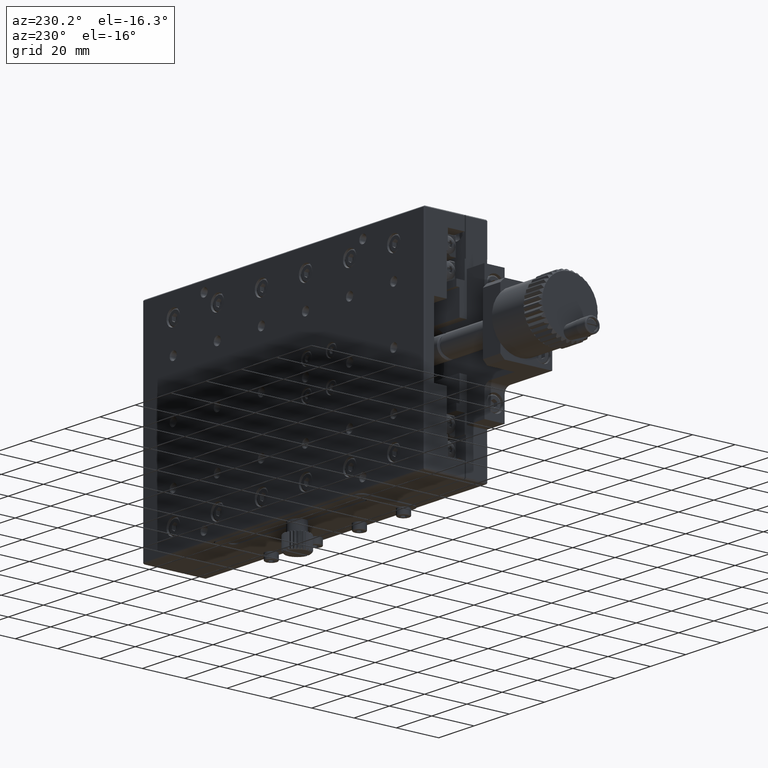
[diagram: clean part render]
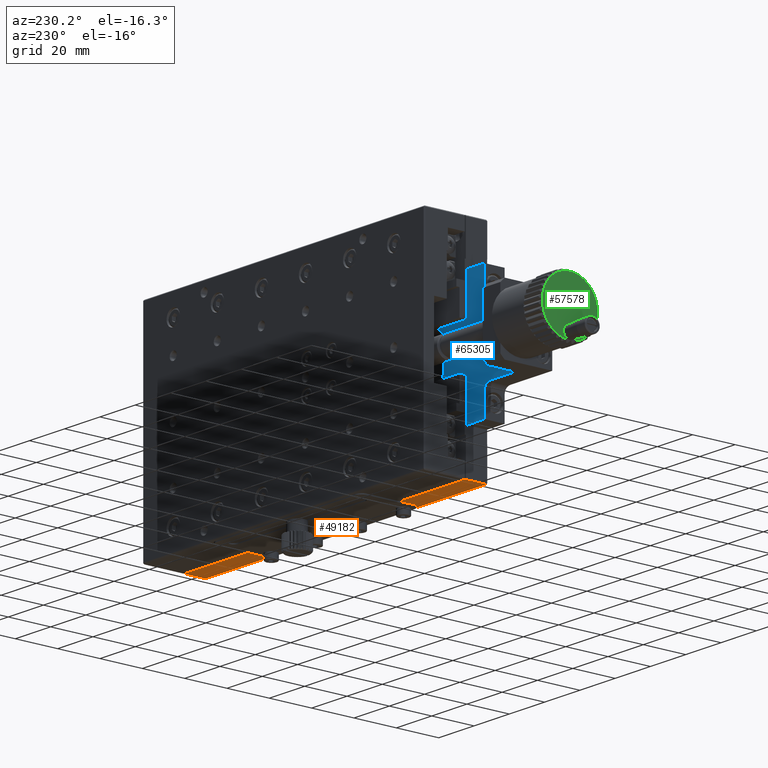
[diagram: same view with three faces highlighted in distinct colors, each labeled with its STEP entity id]
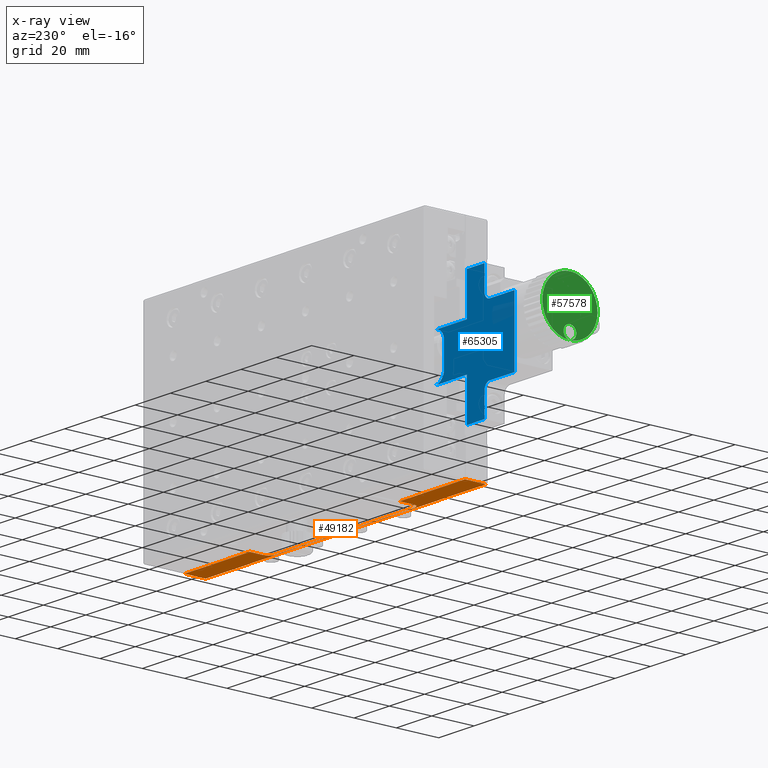
[diagram: x-ray of the same camera — body ghosted, the three highlighted faces saturated]
A machine part, auxiliary view with three faces highlighted in distinct colors.
The next image is the same camera in x-ray (body ghosted, the three faces saturated) — at least one of them is partly hidden behind the body in this view.
Their STEP definitions:

[orange] entity #49182 — the highlighted planar face has unit normal (0, 0, -1).
#2830 = EDGE_CURVE ( 'NONE', #29335, #52256, #29760, .T. ) ;
#3713 = EDGE_CURVE ( 'NONE', #43859, #10094, #29231, .T. ) ;
#3961 = CARTESIAN_POINT ( 'NONE',  ( -160.0000000000000000, 1.000000000000000000, -50.00000000000000000 ) ) ;
#9075 = AXIS2_PLACEMENT_3D ( 'NONE', #58511, #13027, #14111 ) ;
#10094 = VERTEX_POINT ( 'NONE', #46586 ) ;
#10455 = DIRECTION ( 'NONE',  ( -1.000000000000000000, -0.000000000000000000, 0.000000000000000000 ) ) ;
#12953 = CARTESIAN_POINT ( 'NONE',  ( -40.50000000000000711, 1.000000000000000000, -50.00000000000000000 ) ) ;
#13027 = DIRECTION ( 'NONE',  ( 0.000000000000000000, 0.000000000000000000, 1.000000000000000000 ) ) ;
#13238 = DIRECTION ( 'NONE',  ( -0.000000000000000000, -1.000000000000000000, 0.000000000000000000 ) ) ;
#13339 = LINE ( 'NONE', #70224, #66311 ) ;
#14111 = DIRECTION ( 'NONE',  ( 1.000000000000000000, 0.000000000000000000, 0.000000000000000000 ) ) ;
#14486 = CARTESIAN_POINT ( 'NONE',  ( -119.5000000000000142, 3.999999999999989786, -50.00000000000000000 ) ) ;
#14594 = VERTEX_POINT ( 'NONE', #40571 ) ;
#16097 = DIRECTION ( 'NONE',  ( 0.000000000000000000, 0.000000000000000000, -1.000000000000000000 ) ) ;
#16907 = CARTESIAN_POINT ( 'NONE',  ( -159.5000000000000000, 10.50000000000000178, -50.00000000000000000 ) ) ;
#17984 = CARTESIAN_POINT ( 'NONE',  ( -37.50000000000000711, 3.999999999999994671, -50.00000000000000000 ) ) ;
#19765 = EDGE_CURVE ( 'NONE', #57013, #14594, #56715, .T. ) ;
#20363 = DIRECTION ( 'NONE',  ( 0.000000000000000000, 0.000000000000000000, 1.000000000000000000 ) ) ;
#21026 = ORIENTED_EDGE ( 'NONE', *, *, #28365, .F. ) ;
#21817 = ORIENTED_EDGE ( 'NONE', *, *, #19765, .T. ) ;
#22149 = DIRECTION ( 'NONE',  ( -1.000000000000000000, -0.000000000000000000, 0.000000000000000000 ) ) ;
#22353 = AXIS2_PLACEMENT_3D ( 'NONE', #66001, #16097, #32640 ) ;
#22389 = CARTESIAN_POINT ( 'NONE',  ( -122.5000000000000000, 10.50000000000000000, -50.00000000000000000 ) ) ;
#23714 = CARTESIAN_POINT ( 'NONE',  ( -37.50000000000000711, 0.000000000000000000, -50.00000000000000000 ) ) ;
#24225 = VECTOR ( 'NONE', #50480, 1000.000000000000000 ) ;
#25075 = EDGE_CURVE ( 'NONE', #14594, #67556, #54207, .T. ) ;
#26237 = DIRECTION ( 'NONE',  ( 1.000000000000000000, 0.000000000000000000, 0.000000000000000000 ) ) ;
#27058 = EDGE_CURVE ( 'NONE', #45104, #35525, #13339, .T. ) ;
#27130 = PLANE ( 'NONE',  #22353 ) ;
#27473 = FACE_OUTER_BOUND ( 'NONE', #50292, .T. ) ;
#28365 = EDGE_CURVE ( 'NONE', #29335, #10094, #31403, .T. ) ;
#29231 = LINE ( 'NONE', #23714, #66577 ) ;
#29335 = VERTEX_POINT ( 'NONE', #52433 ) ;
#29760 = LINE ( 'NONE', #51041, #38395 ) ;
#31403 = LINE ( 'NONE', #49005, #72120 ) ;
#32370 = ORIENTED_EDGE ( 'NONE', *, *, #60025, .T. ) ;
#32459 = CARTESIAN_POINT ( 'NONE',  ( -160.0000000000000000, 10.50000000000000000, -50.00000000000000000 ) ) ;
#32500 = CIRCLE ( 'NONE', #9075, 2.999999999999988898 ) ;
#32640 = DIRECTION ( 'NONE',  ( -1.000000000000000000, 0.000000000000000000, -0.000000000000000000 ) ) ;
#35525 = VERTEX_POINT ( 'NONE', #50827 ) ;
#35828 = EDGE_CURVE ( 'NONE', #69251, #45104, #54824, .T. ) ;
#37176 = ORIENTED_EDGE ( 'NONE', *, *, #25075, .T. ) ;
#38395 = VECTOR ( 'NONE', #13238, 1000.000000000000000 ) ;
#38668 = CARTESIAN_POINT ( 'NONE',  ( -0.5000000000000004441, 0.5000000000000001110, -50.00000000000000000 ) ) ;
#40550 = VECTOR ( 'NONE', #22149, 1000.000000000000000 ) ;
#40571 = CARTESIAN_POINT ( 'NONE',  ( -119.5000000000000142, 1.000000000000000000, -50.00000000000000000 ) ) ;
#41832 = ORIENTED_EDGE ( 'NONE', *, *, #35828, .F. ) ;
#43796 = ORIENTED_EDGE ( 'NONE', *, *, #2830, .T. ) ;
#43859 = VERTEX_POINT ( 'NONE', #17984 ) ;
#44619 = VECTOR ( 'NONE', #65368, 1000.000000000000000 ) ;
#45104 = VERTEX_POINT ( 'NONE', #16907 ) ;
#46586 = CARTESIAN_POINT ( 'NONE',  ( -37.50000000000000711, 10.50000000000000000, -50.00000000000000000 ) ) ;
#48494 = CARTESIAN_POINT ( 'NONE',  ( -122.5000000000000000, 0.000000000000000000, -50.00000000000000000 ) ) ;
#48730 = DIRECTION ( 'NONE',  ( 1.000000000000000000, -0.000000000000000000, 0.000000000000000000 ) ) ;
#49005 = CARTESIAN_POINT ( 'NONE',  ( -160.0000000000000000, 10.50000000000000000, -50.00000000000000000 ) ) ;
#49182 = ADVANCED_FACE ( 'NONE', ( #27473 ), #27130, .T. ) ;
#50114 = CARTESIAN_POINT ( 'NONE',  ( -160.0000000000000000, 0.4999999999999997780, -50.00000000000000000 ) ) ;
#50292 = EDGE_LOOP ( 'NONE', ( #32370, #68024, #41832, #66868, #21817, #37176, #70186, #63128, #21026, #43796 ) ) ;
#50368 = CARTESIAN_POINT ( 'NONE',  ( -122.5000000000000000, 3.999999999999994671, -50.00000000000000000 ) ) ;
#50480 = DIRECTION ( 'NONE',  ( -1.000000000000000000, -0.000000000000000000, -0.000000000000000000 ) ) ;
#50827 = CARTESIAN_POINT ( 'NONE',  ( -159.5000000000000000, 0.5000000000000002220, -50.00000000000000000 ) ) ;
#51041 = CARTESIAN_POINT ( 'NONE',  ( -0.5000000000000004441, 0.000000000000000000, -50.00000000000000000 ) ) ;
#51245 = EDGE_CURVE ( 'NONE', #69251, #57013, #59855, .T. ) ;
#52256 = VERTEX_POINT ( 'NONE', #38668 ) ;
#52433 = CARTESIAN_POINT ( 'NONE',  ( -0.5000000000000002220, 10.50000000000000178, -50.00000000000000000 ) ) ;
#53261 = VECTOR ( 'NONE', #48730, 1000.000000000000000 ) ;
#54207 = LINE ( 'NONE', #3961, #53261 ) ;
#54824 = LINE ( 'NONE', #32459, #40550 ) ;
#56715 = CIRCLE ( 'NONE', #71979, 2.999999999999988898 ) ;
#57013 = VERTEX_POINT ( 'NONE', #50368 ) ;
#58116 = DIRECTION ( 'NONE',  ( -0.000000000000000000, -1.000000000000000000, 0.000000000000000000 ) ) ;
#58511 = CARTESIAN_POINT ( 'NONE',  ( -40.50000000000000000, 3.999999999999989786, -50.00000000000000000 ) ) ;
#59855 = LINE ( 'NONE', #48494, #44619 ) ;
#60025 = EDGE_CURVE ( 'NONE', #52256, #35525, #62938, .T. ) ;
#62938 = LINE ( 'NONE', #50114, #24225 ) ;
#63128 = ORIENTED_EDGE ( 'NONE', *, *, #3713, .T. ) ;
#65368 = DIRECTION ( 'NONE',  ( -0.000000000000000000, -1.000000000000000000, -0.000000000000000000 ) ) ;
#66001 = CARTESIAN_POINT ( 'NONE',  ( -160.0000000000000000, 0.000000000000000000, -50.00000000000000000 ) ) ;
#66311 = VECTOR ( 'NONE', #58116, 1000.000000000000000 ) ;
#66577 = VECTOR ( 'NONE', #68460, 1000.000000000000000 ) ;
#66623 = EDGE_CURVE ( 'NONE', #67556, #43859, #32500, .T. ) ;
#66868 = ORIENTED_EDGE ( 'NONE', *, *, #51245, .T. ) ;
#67556 = VERTEX_POINT ( 'NONE', #12953 ) ;
#68024 = ORIENTED_EDGE ( 'NONE', *, *, #27058, .F. ) ;
#68460 = DIRECTION ( 'NONE',  ( 0.000000000000000000, 1.000000000000000000, 0.000000000000000000 ) ) ;
#69251 = VERTEX_POINT ( 'NONE', #22389 ) ;
#70186 = ORIENTED_EDGE ( 'NONE', *, *, #66623, .T. ) ;
#70224 = CARTESIAN_POINT ( 'NONE',  ( -159.5000000000000000, 0.000000000000000000, -50.00000000000000000 ) ) ;
#71979 = AXIS2_PLACEMENT_3D ( 'NONE', #14486, #20363, #26237 ) ;
#72120 = VECTOR ( 'NONE', #10455, 1000.000000000000000 ) ;

[blue] entity #65305 — the highlighted planar face has unit normal (0, 1, 0).
#1365 = ORIENTED_EDGE ( 'NONE', *, *, #66980, .T. ) ;
#1619 = LINE ( 'NONE', #69479, #20798 ) ;
#2811 = LINE ( 'NONE', #58217, #23264 ) ;
#3051 = LINE ( 'NONE', #52207, #65022 ) ;
#3207 = VECTOR ( 'NONE', #7865, 1000.000000000000000 ) ;
#3674 = DIRECTION ( 'NONE',  ( 0.000000000000000000, 0.000000000000000000, -1.000000000000000000 ) ) ;
#3964 = VECTOR ( 'NONE', #42468, 1000.000000000000000 ) ;
#4946 = EDGE_CURVE ( 'NONE', #49301, #50276, #35728, .T. ) ;
#4996 = EDGE_CURVE ( 'NONE', #47034, #60810, #1619, .T. ) ;
#5343 = CIRCLE ( 'NONE', #55710, 3.000000000000030198 ) ;
#5764 = CIRCLE ( 'NONE', #66712, 4.999999999999950262 ) ;
#5979 = ORIENTED_EDGE ( 'NONE', *, *, #56603, .T. ) ;
#6082 = EDGE_CURVE ( 'NONE', #48998, #62325, #41250, .T. ) ;
#7160 = CARTESIAN_POINT ( 'NONE',  ( -170.0000000000000000, 10.00000000000000000, -10.50000000000000000 ) ) ;
#7622 = CARTESIAN_POINT ( 'NONE',  ( -142.0000000000000284, 10.00000000000000000, -10.50000000000000000 ) ) ;
#7724 = VECTOR ( 'NONE', #50164, 1000.000000000000000 ) ;
#7865 = DIRECTION ( 'NONE',  ( 0.000000000000000000, 0.000000000000000000, -1.000000000000000000 ) ) ;
#8262 = CARTESIAN_POINT ( 'NONE',  ( -160.0000000000000000, 10.00000000000000000, -10.50000000000000000 ) ) ;
#8503 = DIRECTION ( 'NONE',  ( 0.000000000000000000, -0.000000000000000000, 1.000000000000000000 ) ) ;
#10566 = CARTESIAN_POINT ( 'NONE',  ( -173.0000000000000284, 10.00000000000000000, 15.49999999999998579 ) ) ;
#11218 = VERTEX_POINT ( 'NONE', #48626 ) ;
#11742 = LINE ( 'NONE', #28993, #25379 ) ;
#13283 = LINE ( 'NONE', #13663, #43972 ) ;
#13663 = CARTESIAN_POINT ( 'NONE',  ( -170.0000000000000000, 10.00000000000000000, -10.50000000000000000 ) ) ;
#14444 = DIRECTION ( 'NONE',  ( -0.000000000000000000, -1.000000000000000000, -0.000000000000000000 ) ) ;
#14779 = CIRCLE ( 'NONE', #41696, 3.000000000000030198 ) ;
#15467 = CARTESIAN_POINT ( 'NONE',  ( -142.0000000000000284, 10.00000000000000000, 10.50000000000000000 ) ) ;
#15576 = CARTESIAN_POINT ( 'NONE',  ( -173.0000000000000284, 10.00000000000000000, -18.50000000000000000 ) ) ;
#16049 = VERTEX_POINT ( 'NONE', #10566 ) ;
#16413 = CARTESIAN_POINT ( 'NONE',  ( -160.0000000000000000, 10.00000000000000000, 29.50000000000000000 ) ) ;
#16532 = CARTESIAN_POINT ( 'NONE',  ( -160.0000000000000000, 10.00000000000000000, 29.50000000000000000 ) ) ;
#17709 = DIRECTION ( 'NONE',  ( 0.000000000000000000, -0.000000000000000000, 1.000000000000000000 ) ) ;
#17960 = DIRECTION ( 'NONE',  ( 1.000000000000000000, 0.000000000000000000, -0.000000000000000000 ) ) ;
#18501 = VERTEX_POINT ( 'NONE', #7622 ) ;
#18951 = EDGE_CURVE ( 'NONE', #30149, #18501, #68393, .T. ) ;
#19209 = DIRECTION ( 'NONE',  ( 1.000000000000000000, 0.000000000000000000, -0.000000000000000000 ) ) ;
#19281 = CARTESIAN_POINT ( 'NONE',  ( -186.9999999999999716, 10.00000000000000000, 15.50000000000000000 ) ) ;
#20320 = CARTESIAN_POINT ( 'NONE',  ( -160.0000000000000000, 10.00000000000000000, 10.50000000000000000 ) ) ;
#20326 = CARTESIAN_POINT ( 'NONE',  ( -142.0000000000000284, 10.00000000000000000, -5.500000000000020428 ) ) ;
#20601 = CARTESIAN_POINT ( 'NONE',  ( -160.0000000000000000, 10.00000000000000000, -10.50000000000000000 ) ) ;
#20798 = VECTOR ( 'NONE', #19209, 1000.000000000000000 ) ;
#20822 = ORIENTED_EDGE ( 'NONE', *, *, #65595, .T. ) ;
#23264 = VECTOR ( 'NONE', #24843, 1000.000000000000000 ) ;
#24325 = VECTOR ( 'NONE', #3674, 1000.000000000000000 ) ;
#24347 = DIRECTION ( 'NONE',  ( -1.000000000000000000, -0.000000000000000000, 0.000000000000000000 ) ) ;
#24381 = CARTESIAN_POINT ( 'NONE',  ( -160.0000000000000000, 10.00000000000000000, 0.000000000000000000 ) ) ;
#24843 = DIRECTION ( 'NONE',  ( -1.000000000000000000, -0.000000000000000000, 0.000000000000000000 ) ) ;
#24844 = ORIENTED_EDGE ( 'NONE', *, *, #61307, .T. ) ;
#25379 = VECTOR ( 'NONE', #17960, 1000.000000000000000 ) ;
#25617 = CARTESIAN_POINT ( 'NONE',  ( -187.0000000000000000, 10.00000000000000000, -10.50000000000000000 ) ) ;
#25883 = LINE ( 'NONE', #42380, #34463 ) ;
#26398 = EDGE_CURVE ( 'NONE', #50643, #51345, #66686, .T. ) ;
#26643 = ORIENTED_EDGE ( 'NONE', *, *, #26931, .T. ) ;
#26646 = ORIENTED_EDGE ( 'NONE', *, *, #58240, .T. ) ;
#26931 = EDGE_CURVE ( 'NONE', #16049, #11218, #14779, .T. ) ;
#27526 = VECTOR ( 'NONE', #63632, 1000.000000000000000 ) ;
#27548 = CARTESIAN_POINT ( 'NONE',  ( -142.0000000000000284, 10.00000000000000000, 5.500000000000020428 ) ) ;
#28374 = EDGE_CURVE ( 'NONE', #62325, #42587, #5343, .T. ) ;
#28993 = CARTESIAN_POINT ( 'NONE',  ( -160.0000000000000000, 10.00000000000000000, 15.50000000000000178 ) ) ;
#30149 = VERTEX_POINT ( 'NONE', #47385 ) ;
#30255 = CARTESIAN_POINT ( 'NONE',  ( -173.0000000000000284, 10.00000000000000000, 18.50000000000000000 ) ) ;
#31257 = DIRECTION ( 'NONE',  ( 0.000000000000000000, 1.000000000000000000, 0.000000000000000000 ) ) ;
#33704 = ORIENTED_EDGE ( 'NONE', *, *, #6082, .T. ) ;
#33979 = CARTESIAN_POINT ( 'NONE',  ( -147.0000000000000000, 10.00000000000000000, 5.500000000000009770 ) ) ;
#34463 = VECTOR ( 'NONE', #53377, 1000.000000000000000 ) ;
#34480 = DIRECTION ( 'NONE',  ( -0.000000000000000000, -1.000000000000000000, -0.000000000000000000 ) ) ;
#35728 = LINE ( 'NONE', #24381, #3207 ) ;
#36768 = ORIENTED_EDGE ( 'NONE', *, *, #61773, .T. ) ;
#36776 = AXIS2_PLACEMENT_3D ( 'NONE', #20326, #14444, #65460 ) ;
#36844 = DIRECTION ( 'NONE',  ( -1.000000000000000000, -0.000000000000000000, 0.000000000000000000 ) ) ;
#37691 = ORIENTED_EDGE ( 'NONE', *, *, #4996, .T. ) ;
#38189 = AXIS2_PLACEMENT_3D ( 'NONE', #20601, #31257, #8503 ) ;
#40622 = CARTESIAN_POINT ( 'NONE',  ( -170.0000000000000000, 10.00000000000000000, -18.50000000000000000 ) ) ;
#41250 = LINE ( 'NONE', #7160, #27526 ) ;
#41263 = CARTESIAN_POINT ( 'NONE',  ( -170.0000000000000000, 10.00000000000000000, 29.50000000000000000 ) ) ;
#41696 = AXIS2_PLACEMENT_3D ( 'NONE', #30255, #64354, #59186 ) ;
#42007 = LINE ( 'NONE', #8262, #67978 ) ;
#42257 = VERTEX_POINT ( 'NONE', #19281 ) ;
#42380 = CARTESIAN_POINT ( 'NONE',  ( -147.0000000000000000, 10.00000000000000000, -10.50000000000000000 ) ) ;
#42468 = DIRECTION ( 'NONE',  ( 0.000000000000000000, -0.000000000000000000, 1.000000000000000000 ) ) ;
#42587 = VERTEX_POINT ( 'NONE', #59858 ) ;
#43135 = DIRECTION ( 'NONE',  ( 0.000000000000000000, -1.000000000000000000, 0.000000000000000000 ) ) ;
#43245 = EDGE_CURVE ( 'NONE', #18501, #49301, #42007, .T. ) ;
#43972 = VECTOR ( 'NONE', #17709, 1000.000000000000000 ) ;
#45449 = CARTESIAN_POINT ( 'NONE',  ( -160.0000000000000000, 10.00000000000000000, -10.50000000000000000 ) ) ;
#46159 = ORIENTED_EDGE ( 'NONE', *, *, #68069, .T. ) ;
#47034 = VERTEX_POINT ( 'NONE', #20320 ) ;
#47385 = CARTESIAN_POINT ( 'NONE',  ( -147.0000000000000000, 10.00000000000000000, -5.500000000000009770 ) ) ;
#47549 = EDGE_CURVE ( 'NONE', #60810, #63984, #5764, .T. ) ;
#48425 = CARTESIAN_POINT ( 'NONE',  ( -170.0000000000000000, 10.00000000000000000, -29.50000000000000711 ) ) ;
#48626 = CARTESIAN_POINT ( 'NONE',  ( -169.9999999999999716, 10.00000000000000000, 18.49999999999999645 ) ) ;
#48998 = VERTEX_POINT ( 'NONE', #48425 ) ;
#49301 = VERTEX_POINT ( 'NONE', #45449 ) ;
#50164 = DIRECTION ( 'NONE',  ( 1.000000000000000000, 0.000000000000000000, -0.000000000000000000 ) ) ;
#50276 = VERTEX_POINT ( 'NONE', #64099 ) ;
#50643 = VERTEX_POINT ( 'NONE', #41263 ) ;
#51345 = VERTEX_POINT ( 'NONE', #16532 ) ;
#52207 = CARTESIAN_POINT ( 'NONE',  ( -160.0000000000000000, 10.00000000000000000, -15.50000000000000000 ) ) ;
#53377 = DIRECTION ( 'NONE',  ( -0.000000000000000000, 0.000000000000000000, -1.000000000000000000 ) ) ;
#53922 = CARTESIAN_POINT ( 'NONE',  ( -160.0000000000000000, 10.00000000000000000, 0.000000000000000000 ) ) ;
#54386 = ORIENTED_EDGE ( 'NONE', *, *, #26398, .T. ) ;
#55710 = AXIS2_PLACEMENT_3D ( 'NONE', #15576, #43135, #66215 ) ;
#55783 = DIRECTION ( 'NONE',  ( 0.000000000000000000, 0.000000000000000000, 1.000000000000000000 ) ) ;
#56179 = EDGE_LOOP ( 'NONE', ( #68260, #24844, #60387, #61751, #57800, #46159, #33704, #66857, #36768, #5979, #20822, #26643, #26646, #54386, #1365, #37691 ) ) ;
#56583 = CARTESIAN_POINT ( 'NONE',  ( -186.9999999999999716, 10.00000000000000000, -15.50000000000000000 ) ) ;
#56603 = EDGE_CURVE ( 'NONE', #60437, #42257, #58271, .T. ) ;
#57800 = ORIENTED_EDGE ( 'NONE', *, *, #4946, .T. ) ;
#58217 = CARTESIAN_POINT ( 'NONE',  ( -160.0000000000000000, 10.00000000000000000, -29.50000000000000355 ) ) ;
#58240 = EDGE_CURVE ( 'NONE', #11218, #50643, #13283, .T. ) ;
#58271 = LINE ( 'NONE', #25617, #3964 ) ;
#59115 = PLANE ( 'NONE',  #38189 ) ;
#59186 = DIRECTION ( 'NONE',  ( 0.000000000000000000, 0.000000000000000000, -1.000000000000000000 ) ) ;
#59858 = CARTESIAN_POINT ( 'NONE',  ( -173.0000000000000284, 10.00000000000000000, -15.50000000000000000 ) ) ;
#60387 = ORIENTED_EDGE ( 'NONE', *, *, #18951, .T. ) ;
#60437 = VERTEX_POINT ( 'NONE', #56583 ) ;
#60810 = VERTEX_POINT ( 'NONE', #15467 ) ;
#61307 = EDGE_CURVE ( 'NONE', #63984, #30149, #25883, .T. ) ;
#61751 = ORIENTED_EDGE ( 'NONE', *, *, #43245, .T. ) ;
#61773 = EDGE_CURVE ( 'NONE', #42587, #60437, #3051, .T. ) ;
#62325 = VERTEX_POINT ( 'NONE', #40622 ) ;
#63632 = DIRECTION ( 'NONE',  ( 0.000000000000000000, -0.000000000000000000, 1.000000000000000000 ) ) ;
#63921 = FACE_OUTER_BOUND ( 'NONE', #56179, .T. ) ;
#63984 = VERTEX_POINT ( 'NONE', #33979 ) ;
#64099 = CARTESIAN_POINT ( 'NONE',  ( -160.0000000000000000, 10.00000000000000000, -29.50000000000000711 ) ) ;
#64354 = DIRECTION ( 'NONE',  ( 0.000000000000000000, -1.000000000000000000, 0.000000000000000000 ) ) ;
#65022 = VECTOR ( 'NONE', #24347, 1000.000000000000000 ) ;
#65305 = ADVANCED_FACE ( 'NONE', ( #63921 ), #59115, .T. ) ;
#65460 = DIRECTION ( 'NONE',  ( 0.000000000000000000, 0.000000000000000000, 1.000000000000000000 ) ) ;
#65595 = EDGE_CURVE ( 'NONE', #42257, #16049, #11742, .T. ) ;
#66215 = DIRECTION ( 'NONE',  ( 0.000000000000000000, 0.000000000000000000, -1.000000000000000000 ) ) ;
#66686 = LINE ( 'NONE', #16413, #7724 ) ;
#66712 = AXIS2_PLACEMENT_3D ( 'NONE', #27548, #34480, #55783 ) ;
#66857 = ORIENTED_EDGE ( 'NONE', *, *, #28374, .T. ) ;
#66980 = EDGE_CURVE ( 'NONE', #51345, #47034, #70083, .T. ) ;
#67978 = VECTOR ( 'NONE', #36844, 1000.000000000000000 ) ;
#68069 = EDGE_CURVE ( 'NONE', #50276, #48998, #2811, .T. ) ;
#68260 = ORIENTED_EDGE ( 'NONE', *, *, #47549, .T. ) ;
#68393 = CIRCLE ( 'NONE', #36776, 4.999999999999979572 ) ;
#69479 = CARTESIAN_POINT ( 'NONE',  ( -160.0000000000000000, 10.00000000000000000, 10.50000000000000000 ) ) ;
#70083 = LINE ( 'NONE', #53922, #24325 ) ;

[green] entity #57578 — the highlighted planar face has unit normal (1, 0, 0).
#23 = DIRECTION ( 'NONE',  ( 0.000000000000000000, 0.000000000000000000, 1.000000000000000000 ) ) ;
#58 = CIRCLE ( 'NONE', #28178, 12.99999999999999645 ) ;
#75 = CARTESIAN_POINT ( 'NONE',  ( -225.0000000000000284, 4.982779073122910241, 7.641208279804134307 ) ) ;
#109 = CARTESIAN_POINT ( 'NONE',  ( -225.0000000000000000, 27.67105331831978887, 4.567872713058622303 ) ) ;
#372 = ORIENTED_EDGE ( 'NONE', *, *, #72158, .F. ) ;
#373 = CARTESIAN_POINT ( 'NONE',  ( -225.0000000000000000, 27.67105331831982440, -4.567872713058536149 ) ) ;
#576 = CARTESIAN_POINT ( 'NONE',  ( -225.0000000000000000, 10.39067458849772763, -11.95386104317202580 ) ) ;
#2071 = DIRECTION ( 'NONE',  ( 0.000000000000000000, 1.000000000000000000, 0.000000000000000000 ) ) ;
#2103 = DIRECTION ( 'NONE',  ( 0.000000000000000000, 1.000000000000000000, 0.000000000000000000 ) ) ;
#2107 = CARTESIAN_POINT ( 'NONE',  ( -225.0000000000000000, 15.50000000000000178, 0.000000000000000000 ) ) ;
#2197 = CIRCLE ( 'NONE', #20939, 12.99999999999999645 ) ;
#2696 = DIRECTION ( 'NONE',  ( 1.000000000000000000, -9.912705577010328508E-16, 0.000000000000000000 ) ) ;
#3145 = CARTESIAN_POINT ( 'NONE',  ( -225.0000000000000000, 15.50000000000000178, 0.000000000000000000 ) ) ;
#3184 = DIRECTION ( 'NONE',  ( 1.000000000000000000, -9.912705577010328508E-16, 0.000000000000000000 ) ) ;
#3226 = AXIS2_PLACEMENT_3D ( 'NONE', #37512, #59517, #15833 ) ;
#3230 = DIRECTION ( 'NONE',  ( 1.000000000000000000, -9.912705577010328508E-16, 0.000000000000000000 ) ) ;
#3304 = DIRECTION ( 'NONE',  ( 0.000000000000000000, 1.000000000000000000, 0.000000000000000000 ) ) ;
#3849 = CARTESIAN_POINT ( 'NONE',  ( -225.0000000000000284, 6.516185563168463979, -9.396333229758605299 ) ) ;
#4170 = AXIS2_PLACEMENT_3D ( 'NONE', #62042, #22773, #11778 ) ;
#4228 = AXIS2_PLACEMENT_3D ( 'NONE', #38573, #32718, #60949 ) ;
#4276 = CIRCLE ( 'NONE', #51064, 12.99999999999999645 ) ;
#4290 = CARTESIAN_POINT ( 'NONE',  ( -225.0000000000000000, 25.28992905804953395, 8.553203437218490635 ) ) ;
#4950 = VERTEX_POINT ( 'NONE', #52962 ) ;
#5208 = EDGE_CURVE ( 'NONE', #61246, #49779, #43119, .T. ) ;
#5606 = AXIS2_PLACEMENT_3D ( 'NONE', #34189, #10376, #66137 ) ;
#5720 = DIRECTION ( 'NONE',  ( 0.000000000000000000, 1.000000000000000000, 0.000000000000000000 ) ) ;
#5768 = DIRECTION ( 'NONE',  ( 0.000000000000000000, 1.000000000000000000, 0.000000000000000000 ) ) ;
#5785 = ORIENTED_EDGE ( 'NONE', *, *, #66954, .F. ) ;
#6228 = CARTESIAN_POINT ( 'NONE',  ( -225.0000000000227374, 15.50000000000000000, -10.00000000000000000 ) ) ;
#6232 = EDGE_CURVE ( 'NONE', #11785, #4950, #20512, .T. ) ;
#6383 = VERTEX_POINT ( 'NONE', #41147 ) ;
#6494 = EDGE_CURVE ( 'NONE', #14407, #41399, #46299, .T. ) ;
#6658 = CARTESIAN_POINT ( 'NONE',  ( -225.0000000000000000, 15.50000000000000178, 0.000000000000000000 ) ) ;
#7048 = AXIS2_PLACEMENT_3D ( 'NONE', #54007, #60578, #21674 ) ;
#7571 = CARTESIAN_POINT ( 'NONE',  ( -225.0000000000000284, 4.982779073122965308, -7.641208279804208026 ) ) ;
#7685 = DIRECTION ( 'NONE',  ( 1.000000000000000000, -9.912705577010328508E-16, 0.000000000000000000 ) ) ;
#7737 = DIRECTION ( 'NONE',  ( 0.000000000000000000, 1.000000000000000000, 0.000000000000000000 ) ) ;
#8042 = ORIENTED_EDGE ( 'NONE', *, *, #25257, .F. ) ;
#8291 = CIRCLE ( 'NONE', #37618, 12.99999999999999645 ) ;
#8649 = VERTEX_POINT ( 'NONE', #60947 ) ;
#8822 = AXIS2_PLACEMENT_3D ( 'NONE', #2107, #19700, #53437 ) ;
#8875 = CIRCLE ( 'NONE', #4228, 12.99999999999999645 ) ;
#9020 = AXIS2_PLACEMENT_3D ( 'NONE', #3145, #46833, #24806 ) ;
#9167 = CARTESIAN_POINT ( 'NONE',  ( -225.0000000000000000, 15.50000000000000178, 0.000000000000000000 ) ) ;
#9392 = VERTEX_POINT ( 'NONE', #48852 ) ;
#9514 = DIRECTION ( 'NONE',  ( 1.000000000000000000, -9.912705577010328508E-16, 0.000000000000000000 ) ) ;
#9588 = EDGE_CURVE ( 'NONE', #29482, #60731, #50744, .T. ) ;
#9706 = AXIS2_PLACEMENT_3D ( 'NONE', #43985, #20884, #27112 ) ;
#9757 = CARTESIAN_POINT ( 'NONE',  ( -225.0000000000000000, 28.29108465178554965, 2.321239632382846807 ) ) ;
#10097 = EDGE_CURVE ( 'NONE', #28761, #38951, #28106, .T. ) ;
#10247 = CARTESIAN_POINT ( 'NONE',  ( -225.0000000000000284, 2.552334178058491609, 1.165311015744896039 ) ) ;
#10376 = DIRECTION ( 'NONE',  ( 1.000000000000000000, -9.912705577010328508E-16, 0.000000000000000000 ) ) ;
#10481 = CIRCLE ( 'NONE', #72598, 3.010000000008687948 ) ;
#10723 = CIRCLE ( 'NONE', #44710, 12.99999999999999645 ) ;
#11629 = AXIS2_PLACEMENT_3D ( 'NONE', #40963, #52312, #2071 ) ;
#11778 = DIRECTION ( 'NONE',  ( 0.000000000000000000, 1.000000000000000000, 0.000000000000000000 ) ) ;
#11785 = VERTEX_POINT ( 'NONE', #21719 ) ;
#12121 = ORIENTED_EDGE ( 'NONE', *, *, #33840, .F. ) ;
#12248 = ORIENTED_EDGE ( 'NONE', *, *, #6232, .F. ) ;
#12352 = ORIENTED_EDGE ( 'NONE', *, *, #30322, .F. ) ;
#12957 = DIRECTION ( 'NONE',  ( 1.000000000000000000, -9.912705577010328508E-16, 0.000000000000000000 ) ) ;
#13025 = ORIENTED_EDGE ( 'NONE', *, *, #24261, .F. ) ;
#13621 = AXIS2_PLACEMENT_3D ( 'NONE', #55384, #44756, #39237 ) ;
#13709 = CARTESIAN_POINT ( 'NONE',  ( -225.0000000000000000, 15.50000000000000178, 0.000000000000000000 ) ) ;
#13759 = VERTEX_POINT ( 'NONE', #23331 ) ;
#13868 = VERTEX_POINT ( 'NONE', #58866 ) ;
#13962 = VERTEX_POINT ( 'NONE', #38132 ) ;
#14383 = VERTEX_POINT ( 'NONE', #48346 ) ;
#14407 = VERTEX_POINT ( 'NONE', #66286 ) ;
#14439 = DIRECTION ( 'NONE',  ( 1.000000000000000000, -9.912705577010328508E-16, 0.000000000000000000 ) ) ;
#14642 = AXIS2_PLACEMENT_3D ( 'NONE', #35839, #3184, #2103 ) ;
#14655 = ORIENTED_EDGE ( 'NONE', *, *, #28630, .F. ) ;
#14890 = ORIENTED_EDGE ( 'NONE', *, *, #10097, .F. ) ;
#14937 = DIRECTION ( 'NONE',  ( 0.000000000000000000, 1.000000000000000000, 0.000000000000000000 ) ) ;
#15268 = DIRECTION ( 'NONE',  ( 1.000000000000000000, -9.912705577010328508E-16, 0.000000000000000000 ) ) ;
#15420 = VERTEX_POINT ( 'NONE', #7571 ) ;
#15538 = EDGE_CURVE ( 'NONE', #49178, #6383, #2197, .T. ) ;
#15610 = CARTESIAN_POINT ( 'NONE',  ( -225.0000000000000000, 15.50000000000000178, 0.000000000000000000 ) ) ;
#15681 = VERTEX_POINT ( 'NONE', #32484 ) ;
#15833 = DIRECTION ( 'NONE',  ( 0.000000000000000000, 1.000000000000000000, 0.000000000000000000 ) ) ;
#16859 = CIRCLE ( 'NONE', #40329, 12.99999999999999645 ) ;
#17017 = CIRCLE ( 'NONE', #8822, 12.99999999999999645 ) ;
#17287 = AXIS2_PLACEMENT_3D ( 'NONE', #59679, #65911, #60409 ) ;
#17415 = CIRCLE ( 'NONE', #23297, 12.99999999999999645 ) ;
#17589 = AXIS2_PLACEMENT_3D ( 'NONE', #48712, #3230, #66282 ) ;
#17939 = CARTESIAN_POINT ( 'NONE',  ( -225.0000000000000000, 15.50000000000000178, 0.000000000000000000 ) ) ;
#18085 = CARTESIAN_POINT ( 'NONE',  ( -225.0000000000000000, 12.60722785856714623, 12.67406285836703006 ) ) ;
#18211 = CARTESIAN_POINT ( 'NONE',  ( -225.0000000000113687, 15.77950128802803320, -12.99699500000208907 ) ) ;
#19121 = AXIS2_PLACEMENT_3D ( 'NONE', #58318, #65260, #30448 ) ;
#19142 = VERTEX_POINT ( 'NONE', #37924 ) ;
#19379 = ORIENTED_EDGE ( 'NONE', *, *, #67389, .F. ) ;
#19700 = DIRECTION ( 'NONE',  ( 1.000000000000000000, -9.912705577010328508E-16, 0.000000000000000000 ) ) ;
#19816 = DIRECTION ( 'NONE',  ( 0.000000000000000000, 1.000000000000000000, 0.000000000000000000 ) ) ;
#19904 = ORIENTED_EDGE ( 'NONE', *, *, #64482, .F. ) ;
#20030 = DIRECTION ( 'NONE',  ( 0.000000000000000000, 1.000000000000000000, 0.000000000000000000 ) ) ;
#20470 = DIRECTION ( 'NONE',  ( 0.000000000000000000, 1.000000000000000000, 0.000000000000000000 ) ) ;
#20512 = CIRCLE ( 'NONE', #70917, 12.99999999999999645 ) ;
#20884 = DIRECTION ( 'NONE',  ( 1.000000000000000000, -9.912705577010328508E-16, 0.000000000000000000 ) ) ;
#20939 = AXIS2_PLACEMENT_3D ( 'NONE', #36171, #71380, #20030 ) ;
#21674 = DIRECTION ( 'NONE',  ( 0.000000000000000000, 1.000000000000000000, 0.000000000000000000 ) ) ;
#21719 = CARTESIAN_POINT ( 'NONE',  ( -225.0000000000000284, 3.787404717265470566, 5.640488608529705239 ) ) ;
#22065 = DIRECTION ( 'NONE',  ( 0.000000000000000000, 1.000000000000000000, 0.000000000000000000 ) ) ;
#22098 = VERTEX_POINT ( 'NONE', #54830 ) ;
#22543 = ORIENTED_EDGE ( 'NONE', *, *, #47906, .F. ) ;
#22773 = DIRECTION ( 'NONE',  ( 1.000000000000000000, -9.912705577010328508E-16, 0.000000000000000000 ) ) ;
#23239 = CARTESIAN_POINT ( 'NONE',  ( -225.0000000000000000, 15.50000000000000178, 0.000000000000000000 ) ) ;
#23297 = AXIS2_PLACEMENT_3D ( 'NONE', #15610, #15268, #43883 ) ;
#23331 = CARTESIAN_POINT ( 'NONE',  ( -225.0000000000000284, 21.66029261215061297, 11.44774191414058784 ) ) ;
#24207 = CIRCLE ( 'NONE', #33572, 12.99999999999999645 ) ;
#24261 = EDGE_CURVE ( 'NONE', #13759, #13868, #27777, .T. ) ;
#24423 = DIRECTION ( 'NONE',  ( 1.000000000000000000, -9.912705577010328508E-16, 0.000000000000000000 ) ) ;
#24785 = DIRECTION ( 'NONE',  ( 0.000000000000000000, 1.000000000000000000, 0.000000000000000000 ) ) ;
#24806 = DIRECTION ( 'NONE',  ( 0.000000000000000000, 1.000000000000000000, 0.000000000000000000 ) ) ;
#25257 = EDGE_CURVE ( 'NONE', #6383, #45925, #50893, .T. ) ;
#25262 = VERTEX_POINT ( 'NONE', #18211 ) ;
#25358 = CARTESIAN_POINT ( 'NONE',  ( -225.0000000000000000, 26.65983431682725069, -6.667690606278419807 ) ) ;
#25766 = AXIS2_PLACEMENT_3D ( 'NONE', #34443, #7685, #46950 ) ;
#25843 = CIRCLE ( 'NONE', #17589, 12.99999999999999645 ) ;
#26573 = CARTESIAN_POINT ( 'NONE',  ( -225.0000000000000000, 15.50000000000000178, 0.000000000000000000 ) ) ;
#27112 = DIRECTION ( 'NONE',  ( 0.000000000000000000, 1.000000000000000000, 0.000000000000000000 ) ) ;
#27192 = CARTESIAN_POINT ( 'NONE',  ( -225.0000000000000000, 15.50000000000000178, 0.000000000000000000 ) ) ;
#27605 = AXIS2_PLACEMENT_3D ( 'NONE', #66306, #32942, #20470 ) ;
#27777 = CIRCLE ( 'NONE', #9020, 12.99999999999999645 ) ;
#27781 = DIRECTION ( 'NONE',  ( 1.000000000000000000, -9.912705577010328508E-16, 0.000000000000000000 ) ) ;
#27893 = DIRECTION ( 'NONE',  ( 0.000000000000000000, 1.000000000000000000, 0.000000000000000000 ) ) ;
#27964 = EDGE_CURVE ( 'NONE', #15420, #31138, #46372, .T. ) ;
#28106 = CIRCLE ( 'NONE', #25766, 12.99999999999999645 ) ;
#28149 = ORIENTED_EDGE ( 'NONE', *, *, #64800, .F. ) ;
#28178 = AXIS2_PLACEMENT_3D ( 'NONE', #65641, #9514, #5720 ) ;
#28265 = DIRECTION ( 'NONE',  ( 0.000000000000000000, 1.000000000000000000, 0.000000000000000000 ) ) ;
#28612 = DIRECTION ( 'NONE',  ( -1.000000000000000000, 0.000000000000000000, 0.000000000000000000 ) ) ;
#28630 = EDGE_CURVE ( 'NONE', #38951, #14407, #61634, .T. ) ;
#28761 = VERTEX_POINT ( 'NONE', #31322 ) ;
#29265 = EDGE_CURVE ( 'NONE', #46813, #68770, #72220, .T. ) ;
#29386 = EDGE_CURVE ( 'NONE', #25262, #19142, #24207, .T. ) ;
#29414 = CARTESIAN_POINT ( 'NONE',  ( -225.0000000000000000, 15.50000000000000178, 0.000000000000000000 ) ) ;
#29482 = VERTEX_POINT ( 'NONE', #37262 ) ;
#29624 = CARTESIAN_POINT ( 'NONE',  ( -225.0000000000000000, 28.29108465178556742, -2.321239632382751328 ) ) ;
#30322 = EDGE_CURVE ( 'NONE', #59225, #14383, #52436, .T. ) ;
#30444 = CIRCLE ( 'NONE', #62048, 12.99999999999999645 ) ;
#30448 = DIRECTION ( 'NONE',  ( 0.000000000000000000, 1.000000000000000000, 0.000000000000000000 ) ) ;
#31138 = VERTEX_POINT ( 'NONE', #3849 ) ;
#31200 = AXIS2_PLACEMENT_3D ( 'NONE', #69097, #12957, #64317 ) ;
#31322 = CARTESIAN_POINT ( 'NONE',  ( -225.0000000000000284, 19.51722092687546706, -12.36373471184020723 ) ) ;
#31897 = DIRECTION ( 'NONE',  ( 1.000000000000000000, -9.912705577010328508E-16, 0.000000000000000000 ) ) ;
#32252 = VERTEX_POINT ( 'NONE', #75 ) ;
#32306 = EDGE_CURVE ( 'NONE', #34579, #46813, #37833, .T. ) ;
#32436 = EDGE_CURVE ( 'NONE', #68770, #64975, #41340, .T. ) ;
#32484 = CARTESIAN_POINT ( 'NONE',  ( -225.0000000000000284, 3.787404717265508758, -5.640488608529789616 ) ) ;
#32718 = DIRECTION ( 'NONE',  ( 1.000000000000000000, -9.912705577010328508E-16, 0.000000000000000000 ) ) ;
#32942 = DIRECTION ( 'NONE',  ( 1.000000000000000000, -9.912705577010328508E-16, 0.000000000000000000 ) ) ;
#32957 = ORIENTED_EDGE ( 'NONE', *, *, #42516, .F. ) ;
#33112 = ORIENTED_EDGE ( 'NONE', *, *, #42318, .F. ) ;
#33271 = CARTESIAN_POINT ( 'NONE',  ( -225.0000000000000000, 15.50000000000000178, 0.000000000000000000 ) ) ;
#33432 = CIRCLE ( 'NONE', #4170, 12.99999999999999645 ) ;
#33520 = AXIS2_PLACEMENT_3D ( 'NONE', #13709, #2696, #57728 ) ;
#33572 = AXIS2_PLACEMENT_3D ( 'NONE', #17939, #35202, #57576 ) ;
#33840 = EDGE_CURVE ( 'NONE', #13962, #32252, #16859, .T. ) ;
#33888 = DIRECTION ( 'NONE',  ( 0.000000000000000000, 1.000000000000000000, 0.000000000000000000 ) ) ;
#34189 = CARTESIAN_POINT ( 'NONE',  ( -225.0000000000000000, 15.50000000000000178, 0.000000000000000000 ) ) ;
#34443 = CARTESIAN_POINT ( 'NONE',  ( -225.0000000000000000, 15.50000000000000178, 0.000000000000000000 ) ) ;
#34579 = VERTEX_POINT ( 'NONE', #40739 ) ;
#35202 = DIRECTION ( 'NONE',  ( 1.000000000000000000, -9.912705577010328508E-16, 0.000000000000000000 ) ) ;
#35839 = CARTESIAN_POINT ( 'NONE',  ( -225.0000000000000000, 15.50000000000000178, 0.000000000000000000 ) ) ;
#35903 = CIRCLE ( 'NONE', #31200, 12.99999999999999645 ) ;
#36171 = CARTESIAN_POINT ( 'NONE',  ( -225.0000000000000000, 15.50000000000000178, 0.000000000000000000 ) ) ;
#36331 = CARTESIAN_POINT ( 'NONE',  ( -225.0000000000000284, 8.338339241120859668, -10.84945229837982517 ) ) ;
#36584 = CARTESIAN_POINT ( 'NONE',  ( -225.0000000000000000, 15.50000000000000178, 0.000000000000000000 ) ) ;
#36658 = CARTESIAN_POINT ( 'NONE',  ( -225.0000000000000000, 15.50000000000000178, 0.000000000000000000 ) ) ;
#36832 = DIRECTION ( 'NONE',  ( 0.000000000000000000, 1.000000000000000000, 0.000000000000000000 ) ) ;
#37262 = CARTESIAN_POINT ( 'NONE',  ( -225.0000000000000284, 17.24503245562998188, 12.88234690298652829 ) ) ;
#37338 = ORIENTED_EDGE ( 'NONE', *, *, #15538, .F. ) ;
#37512 = CARTESIAN_POINT ( 'NONE',  ( -225.0000000000000000, 15.50000000000000178, 0.000000000000000000 ) ) ;
#37618 = AXIS2_PLACEMENT_3D ( 'NONE', #26573, #14439, #36832 ) ;
#37658 = VERTEX_POINT ( 'NONE', #25358 ) ;
#37833 = CIRCLE ( 'NONE', #46011, 12.99999999999999645 ) ;
#37924 = CARTESIAN_POINT ( 'NONE',  ( -225.0000000000000284, 17.24503245563008136, -12.88234690298651586 ) ) ;
#38132 = CARTESIAN_POINT ( 'NONE',  ( -225.0000000000000284, 6.516185563168387596, 9.396333229758541350 ) ) ;
#38403 = CIRCLE ( 'NONE', #52445, 12.99999999999999645 ) ;
#38475 = ORIENTED_EDGE ( 'NONE', *, *, #59266, .F. ) ;
#38573 = CARTESIAN_POINT ( 'NONE',  ( -225.0000000000000000, 15.50000000000000178, 0.000000000000000000 ) ) ;
#38600 = EDGE_CURVE ( 'NONE', #15681, #15420, #50021, .T. ) ;
#38664 = CIRCLE ( 'NONE', #7048, 12.99999999999999645 ) ;
#38897 = DIRECTION ( 'NONE',  ( 1.000000000000000000, -9.912705577010328508E-16, 0.000000000000000000 ) ) ;
#38951 = VERTEX_POINT ( 'NONE', #69095 ) ;
#39094 = EDGE_CURVE ( 'NONE', #37658, #58496, #50075, .T. ) ;
#39237 = DIRECTION ( 'NONE',  ( 0.000000000000000000, 1.000000000000000000, 0.000000000000000000 ) ) ;
#39759 = CIRCLE ( 'NONE', #46857, 12.99999999999999645 ) ;
#39883 = ORIENTED_EDGE ( 'NONE', *, *, #38600, .F. ) ;
#40329 = AXIS2_PLACEMENT_3D ( 'NONE', #36584, #69993, #14937 ) ;
#40706 = VERTEX_POINT ( 'NONE', #29624 ) ;
#40739 = CARTESIAN_POINT ( 'NONE',  ( -225.0000000000000000, 28.50000000000341061, -4.538925740497264226E-14 ) ) ;
#40963 = CARTESIAN_POINT ( 'NONE',  ( -225.0000000000000000, 15.50000000000000178, 0.000000000000000000 ) ) ;
#41147 = CARTESIAN_POINT ( 'NONE',  ( -225.0000000000000284, 2.552334178058501823, -1.165311015744992407 ) ) ;
#41340 = CIRCLE ( 'NONE', #9706, 12.99999999999999645 ) ;
#41399 = VERTEX_POINT ( 'NONE', #60941 ) ;
#41465 = CARTESIAN_POINT ( 'NONE',  ( -225.0000000000000000, 15.50000000000000178, 0.000000000000000000 ) ) ;
#41656 = AXIS2_PLACEMENT_3D ( 'NONE', #55441, #66839, #22065 ) ;
#42252 = EDGE_CURVE ( 'NONE', #41399, #37658, #39759, .T. ) ;
#42318 = EDGE_CURVE ( 'NONE', #45925, #15681, #55002, .T. ) ;
#42516 = EDGE_CURVE ( 'NONE', #13868, #29482, #38664, .T. ) ;
#43119 = CIRCLE ( 'NONE', #5606, 12.99999999999999645 ) ;
#43170 = CARTESIAN_POINT ( 'NONE',  ( -225.0000000000000000, 26.65983431682720450, 6.667690606278503296 ) ) ;
#43544 = FACE_OUTER_BOUND ( 'NONE', #54518, .T. ) ;
#43883 = DIRECTION ( 'NONE',  ( 0.000000000000000000, 1.000000000000000000, 0.000000000000000000 ) ) ;
#43891 = PLANE ( 'NONE',  #67360 ) ;
#43985 = CARTESIAN_POINT ( 'NONE',  ( -225.0000000000000000, 15.50000000000000178, 0.000000000000000000 ) ) ;
#44418 = ORIENTED_EDGE ( 'NONE', *, *, #72401, .F. ) ;
#44495 = EDGE_CURVE ( 'NONE', #57601, #22098, #25843, .T. ) ;
#44710 = AXIS2_PLACEMENT_3D ( 'NONE', #27192, #56148, #28265 ) ;
#44756 = DIRECTION ( 'NONE',  ( 1.000000000000000000, -9.912705577010328508E-16, 0.000000000000000000 ) ) ;
#45260 = ORIENTED_EDGE ( 'NONE', *, *, #9588, .F. ) ;
#45925 = VERTEX_POINT ( 'NONE', #62229 ) ;
#46011 = AXIS2_PLACEMENT_3D ( 'NONE', #6658, #61697, #61326 ) ;
#46299 = CIRCLE ( 'NONE', #14642, 12.99999999999999645 ) ;
#46372 = CIRCLE ( 'NONE', #27605, 12.99999999999999645 ) ;
#46601 = CIRCLE ( 'NONE', #17287, 12.99999999999999645 ) ;
#46813 = VERTEX_POINT ( 'NONE', #9757 ) ;
#46833 = DIRECTION ( 'NONE',  ( 1.000000000000000000, -9.912705577010328508E-16, 0.000000000000000000 ) ) ;
#46853 = EDGE_CURVE ( 'NONE', #14383, #65304, #17415, .T. ) ;
#46857 = AXIS2_PLACEMENT_3D ( 'NONE', #33271, #27781, #50147 ) ;
#46950 = DIRECTION ( 'NONE',  ( 0.000000000000000000, 1.000000000000000000, 0.000000000000000000 ) ) ;
#47906 = EDGE_CURVE ( 'NONE', #60731, #59225, #30444, .T. ) ;
#48346 = CARTESIAN_POINT ( 'NONE',  ( -225.0000000000000000, 10.39067458849763881, 11.95386104317199027 ) ) ;
#48659 = ORIENTED_EDGE ( 'NONE', *, *, #52723, .F. ) ;
#48712 = CARTESIAN_POINT ( 'NONE',  ( -225.0000000000000000, 15.50000000000000178, 0.000000000000000000 ) ) ;
#48852 = CARTESIAN_POINT ( 'NONE',  ( -225.0000000000113687, 15.22049871197201831, -12.99699500000209440 ) ) ;
#48935 = AXIS2_PLACEMENT_3D ( 'NONE', #66786, #38897, #27893 ) ;
#49042 = ORIENTED_EDGE ( 'NONE', *, *, #29265, .F. ) ;
#49178 = VERTEX_POINT ( 'NONE', #10247 ) ;
#49779 = VERTEX_POINT ( 'NONE', #50703 ) ;
#50021 = CIRCLE ( 'NONE', #59403, 12.99999999999999645 ) ;
#50075 = CIRCLE ( 'NONE', #3226, 12.99999999999999645 ) ;
#50147 = DIRECTION ( 'NONE',  ( 0.000000000000000000, 1.000000000000000000, 0.000000000000000000 ) ) ;
#50616 = ORIENTED_EDGE ( 'NONE', *, *, #58606, .F. ) ;
#50703 = CARTESIAN_POINT ( 'NONE',  ( -225.0000000000000000, 12.60722785856724393, -12.67406285836704960 ) ) ;
#50744 = CIRCLE ( 'NONE', #19121, 12.99999999999999645 ) ;
#50893 = CIRCLE ( 'NONE', #62633, 12.99999999999999645 ) ;
#50935 = ORIENTED_EDGE ( 'NONE', *, *, #59099, .F. ) ;
#51064 = AXIS2_PLACEMENT_3D ( 'NONE', #23239, #51105, #33888 ) ;
#51105 = DIRECTION ( 'NONE',  ( 1.000000000000000000, -9.912705577010328508E-16, 0.000000000000000000 ) ) ;
#51353 = EDGE_CURVE ( 'NONE', #64975, #57601, #10723, .T. ) ;
#51387 = DIRECTION ( 'NONE',  ( 1.000000000000000000, -9.912705577010328508E-16, 0.000000000000000000 ) ) ;
#51772 = DIRECTION ( 'NONE',  ( 0.000000000000000000, 1.000000000000000000, 0.000000000000000000 ) ) ;
#52097 = ORIENTED_EDGE ( 'NONE', *, *, #39094, .F. ) ;
#52312 = DIRECTION ( 'NONE',  ( 1.000000000000000000, -9.912705577010328508E-16, 0.000000000000000000 ) ) ;
#52344 = ORIENTED_EDGE ( 'NONE', *, *, #27964, .F. ) ;
#52436 = CIRCLE ( 'NONE', #48935, 12.99999999999999645 ) ;
#52445 = AXIS2_PLACEMENT_3D ( 'NONE', #9167, #31897, #19816 ) ;
#52723 = EDGE_CURVE ( 'NONE', #32252, #11785, #55322, .T. ) ;
#52962 = CARTESIAN_POINT ( 'NONE',  ( -225.0000000000000284, 2.968482810950610062, 3.458478992367644889 ) ) ;
#53437 = DIRECTION ( 'NONE',  ( 0.000000000000000000, 1.000000000000000000, 0.000000000000000000 ) ) ;
#53554 = DIRECTION ( 'NONE',  ( 1.000000000000000000, -9.912705577010328508E-16, 0.000000000000000000 ) ) ;
#54007 = CARTESIAN_POINT ( 'NONE',  ( -225.0000000000000000, 15.50000000000000178, 0.000000000000000000 ) ) ;
#54169 = CARTESIAN_POINT ( 'NONE',  ( -225.0000000000000000, 15.50000000000000000, 0.000000000000000000 ) ) ;
#54518 = EDGE_LOOP ( 'NONE', ( #58421, #59336, #50935, #372, #65712, #38475, #28149, #52344, #39883, #33112, #8042, #37338, #44418, #12248, #48659, #12121, #50616, #62897, #12352, #22543, #45260, #32957, #13025, #19904, #70558, #61689, #68426, #49042, #68580, #71400, #5785, #52097, #54658, #54650, #14655, #14890, #19379 ) ) ;
#54650 = ORIENTED_EDGE ( 'NONE', *, *, #6494, .F. ) ;
#54658 = ORIENTED_EDGE ( 'NONE', *, *, #42252, .F. ) ;
#54830 = CARTESIAN_POINT ( 'NONE',  ( -225.0000000000000000, 23.60536742416567790, 10.16380927208704144 ) ) ;
#55002 = CIRCLE ( 'NONE', #11629, 12.99999999999999645 ) ;
#55030 = VERTEX_POINT ( 'NONE', #36331 ) ;
#55322 = CIRCLE ( 'NONE', #59988, 12.99999999999999645 ) ;
#55384 = CARTESIAN_POINT ( 'NONE',  ( -225.0000000000000000, 15.50000000000000178, 0.000000000000000000 ) ) ;
#55441 = CARTESIAN_POINT ( 'NONE',  ( -225.0000000000000000, 15.50000000000000178, 0.000000000000000000 ) ) ;
#56018 = CARTESIAN_POINT ( 'NONE',  ( -225.0000000000000000, 15.50000000000000178, 0.000000000000000000 ) ) ;
#56148 = DIRECTION ( 'NONE',  ( 1.000000000000000000, -9.912705577010328508E-16, 0.000000000000000000 ) ) ;
#56524 = DIRECTION ( 'NONE',  ( 1.000000000000000000, -9.912705577010328508E-16, 0.000000000000000000 ) ) ;
#57576 = DIRECTION ( 'NONE',  ( 0.000000000000000000, 1.000000000000000000, 0.000000000000000000 ) ) ;
#57578 = ADVANCED_FACE ( 'NONE', ( #43544 ), #43891, .F. ) ;
#57601 = VERTEX_POINT ( 'NONE', #4290 ) ;
#57728 = DIRECTION ( 'NONE',  ( 0.000000000000000000, 1.000000000000000000, 0.000000000000000000 ) ) ;
#58318 = CARTESIAN_POINT ( 'NONE',  ( -225.0000000000000000, 15.50000000000000178, 0.000000000000000000 ) ) ;
#58421 = ORIENTED_EDGE ( 'NONE', *, *, #29386, .F. ) ;
#58496 = VERTEX_POINT ( 'NONE', #373 ) ;
#58606 = EDGE_CURVE ( 'NONE', #65304, #13962, #8875, .T. ) ;
#58866 = CARTESIAN_POINT ( 'NONE',  ( -225.0000000000000284, 19.51722092687538179, 12.36373471184023742 ) ) ;
#59099 = EDGE_CURVE ( 'NONE', #8649, #9392, #4276, .T. ) ;
#59225 = VERTEX_POINT ( 'NONE', #18085 ) ;
#59266 = EDGE_CURVE ( 'NONE', #55030, #61246, #35903, .T. ) ;
#59336 = ORIENTED_EDGE ( 'NONE', *, *, #69245, .F. ) ;
#59403 = AXIS2_PLACEMENT_3D ( 'NONE', #61848, #24423, #24785 ) ;
#59517 = DIRECTION ( 'NONE',  ( 1.000000000000000000, -9.912705577010328508E-16, 0.000000000000000000 ) ) ;
#59679 = CARTESIAN_POINT ( 'NONE',  ( -225.0000000000000000, 15.50000000000000178, 0.000000000000000000 ) ) ;
#59988 = AXIS2_PLACEMENT_3D ( 'NONE', #41465, #51387, #7737 ) ;
#60409 = DIRECTION ( 'NONE',  ( 0.000000000000000000, 1.000000000000000000, 0.000000000000000000 ) ) ;
#60439 = DIRECTION ( 'NONE',  ( 1.000000000000000000, -9.912705577010328508E-16, 0.000000000000000000 ) ) ;
#60578 = DIRECTION ( 'NONE',  ( 1.000000000000000000, -9.912705577010328508E-16, 0.000000000000000000 ) ) ;
#60731 = VERTEX_POINT ( 'NONE', #65753 ) ;
#60941 = CARTESIAN_POINT ( 'NONE',  ( -225.0000000000000000, 25.28992905804959435, -8.553203437218416028 ) ) ;
#60947 = CARTESIAN_POINT ( 'NONE',  ( -225.0000000000000000, 14.91675720544324513, -12.98690986504049860 ) ) ;
#60949 = DIRECTION ( 'NONE',  ( 0.000000000000000000, 1.000000000000000000, 0.000000000000000000 ) ) ;
#61246 = VERTEX_POINT ( 'NONE', #576 ) ;
#61326 = DIRECTION ( 'NONE',  ( 0.000000000000000000, 1.000000000000000000, 0.000000000000000000 ) ) ;
#61634 = CIRCLE ( 'NONE', #33520, 12.99999999999999645 ) ;
#61689 = ORIENTED_EDGE ( 'NONE', *, *, #51353, .F. ) ;
#61697 = DIRECTION ( 'NONE',  ( 1.000000000000000000, -9.912705577010328508E-16, 0.000000000000000000 ) ) ;
#61848 = CARTESIAN_POINT ( 'NONE',  ( -225.0000000000000000, 15.50000000000000178, 0.000000000000000000 ) ) ;
#62042 = CARTESIAN_POINT ( 'NONE',  ( -225.0000000000000000, 15.50000000000000178, 0.000000000000000000 ) ) ;
#62048 = AXIS2_PLACEMENT_3D ( 'NONE', #36658, #53554, #3304 ) ;
#62229 = CARTESIAN_POINT ( 'NONE',  ( -225.0000000000000284, 2.968482810950641593, -3.458478992367738591 ) ) ;
#62633 = AXIS2_PLACEMENT_3D ( 'NONE', #56018, #60439, #5768 ) ;
#62753 = CIRCLE ( 'NONE', #41656, 12.99999999999999645 ) ;
#62897 = ORIENTED_EDGE ( 'NONE', *, *, #46853, .F. ) ;
#64317 = DIRECTION ( 'NONE',  ( 0.000000000000000000, 1.000000000000000000, 0.000000000000000000 ) ) ;
#64482 = EDGE_CURVE ( 'NONE', #22098, #13759, #33432, .T. ) ;
#64536 = EDGE_CURVE ( 'NONE', #40706, #34579, #62753, .T. ) ;
#64641 = CARTESIAN_POINT ( 'NONE',  ( -225.0000000000000284, 8.338339241120779732, 10.84945229837976832 ) ) ;
#64800 = EDGE_CURVE ( 'NONE', #31138, #55030, #17017, .T. ) ;
#64975 = VERTEX_POINT ( 'NONE', #43170 ) ;
#65260 = DIRECTION ( 'NONE',  ( 1.000000000000000000, -9.912705577010328508E-16, 0.000000000000000000 ) ) ;
#65304 = VERTEX_POINT ( 'NONE', #64641 ) ;
#65546 = DIRECTION ( 'NONE',  ( 1.000000000000000000, 0.000000000000000000, 0.000000000000000000 ) ) ;
#65641 = CARTESIAN_POINT ( 'NONE',  ( -225.0000000000000000, 15.50000000000000178, 0.000000000000000000 ) ) ;
#65712 = ORIENTED_EDGE ( 'NONE', *, *, #5208, .F. ) ;
#65753 = CARTESIAN_POINT ( 'NONE',  ( -225.0000000000000000, 14.91675720544315276, 12.98690986504049860 ) ) ;
#65911 = DIRECTION ( 'NONE',  ( 1.000000000000000000, -9.912705577010328508E-16, 0.000000000000000000 ) ) ;
#66137 = DIRECTION ( 'NONE',  ( 0.000000000000000000, 1.000000000000000000, 0.000000000000000000 ) ) ;
#66282 = DIRECTION ( 'NONE',  ( 0.000000000000000000, 1.000000000000000000, 0.000000000000000000 ) ) ;
#66286 = CARTESIAN_POINT ( 'NONE',  ( -225.0000000000000000, 23.60536742416575251, -10.16380927208698282 ) ) ;
#66306 = CARTESIAN_POINT ( 'NONE',  ( -225.0000000000000000, 15.50000000000000178, 0.000000000000000000 ) ) ;
#66786 = CARTESIAN_POINT ( 'NONE',  ( -225.0000000000000000, 15.50000000000000178, 0.000000000000000000 ) ) ;
#66839 = DIRECTION ( 'NONE',  ( 1.000000000000000000, -9.912705577010328508E-16, 0.000000000000000000 ) ) ;
#66954 = EDGE_CURVE ( 'NONE', #58496, #40706, #38403, .T. ) ;
#67360 = AXIS2_PLACEMENT_3D ( 'NONE', #54169, #65546, #71428 ) ;
#67389 = EDGE_CURVE ( 'NONE', #19142, #28761, #46601, .T. ) ;
#68426 = ORIENTED_EDGE ( 'NONE', *, *, #32436, .F. ) ;
#68580 = ORIENTED_EDGE ( 'NONE', *, *, #32306, .F. ) ;
#68770 = VERTEX_POINT ( 'NONE', #109 ) ;
#69095 = CARTESIAN_POINT ( 'NONE',  ( -225.0000000000000284, 21.66029261215070179, -11.44774191414054165 ) ) ;
#69097 = CARTESIAN_POINT ( 'NONE',  ( -225.0000000000000000, 15.50000000000000178, 0.000000000000000000 ) ) ;
#69245 = EDGE_CURVE ( 'NONE', #9392, #25262, #10481, .T. ) ;
#69993 = DIRECTION ( 'NONE',  ( 1.000000000000000000, -9.912705577010328508E-16, 0.000000000000000000 ) ) ;
#70558 = ORIENTED_EDGE ( 'NONE', *, *, #44495, .F. ) ;
#70917 = AXIS2_PLACEMENT_3D ( 'NONE', #29414, #56524, #51772 ) ;
#71380 = DIRECTION ( 'NONE',  ( 1.000000000000000000, -9.912705577010328508E-16, 0.000000000000000000 ) ) ;
#71400 = ORIENTED_EDGE ( 'NONE', *, *, #64536, .F. ) ;
#71428 = DIRECTION ( 'NONE',  ( 0.000000000000000000, 0.000000000000000000, -1.000000000000000000 ) ) ;
#72158 = EDGE_CURVE ( 'NONE', #49779, #8649, #58, .T. ) ;
#72220 = CIRCLE ( 'NONE', #13621, 12.99999999999999645 ) ;
#72401 = EDGE_CURVE ( 'NONE', #4950, #49178, #8291, .T. ) ;
#72598 = AXIS2_PLACEMENT_3D ( 'NONE', #6228, #28612, #23 ) ;